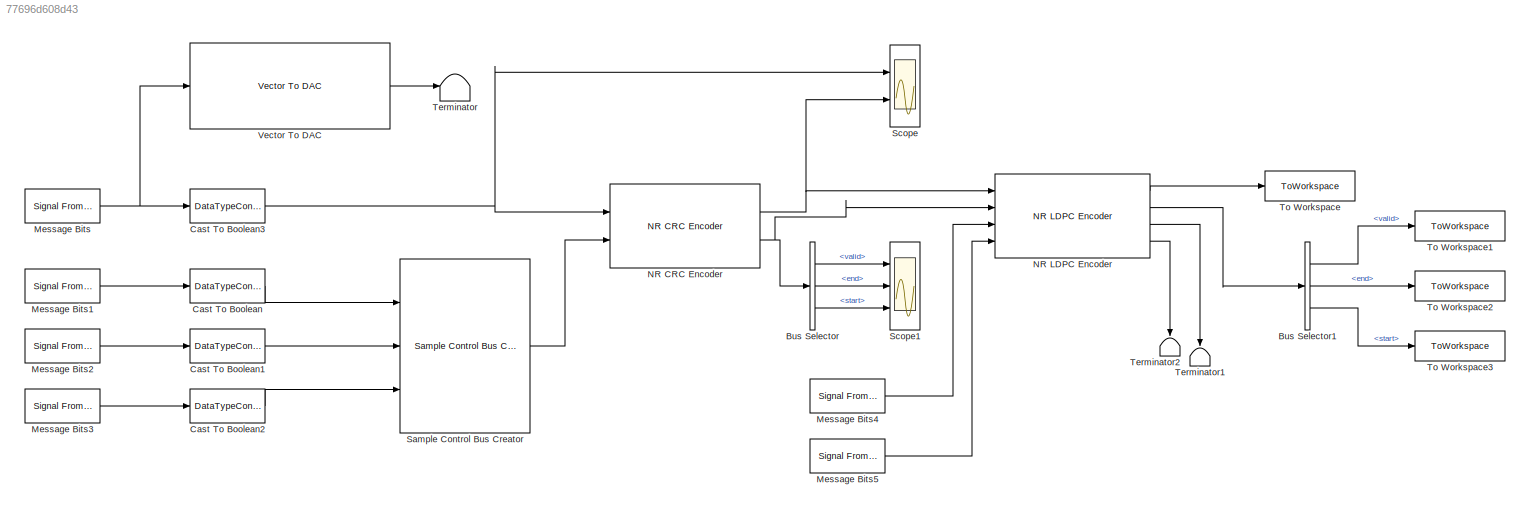
MODEL slx_77696d608d43
KIND model
CONFIG AbsTol = auto
CONFIG EnableMultiTasking = off
CONFIG FixedStep = auto
CONFIG MaxStep = auto
CONFIG MinStep = auto
CONFIG RelTol = 1e-3
CONFIG SampleTimeConstraint = Unconstrained
CONFIG SolverName = VariableStepAuto
CONFIG StartTime = 0.0
CONFIG StopTime = 60
BLOCK [BusSelector] Bus Selector
  OutputSignals = valid,end,start
  Ports = [1, 3]
BLOCK [BusSelector] Bus Selector1
  OutputSignals = valid,end,start
  Ports = [1, 3]
BLOCK [DataTypeConversion] Cast To Boolean
  OutDataTypeStr = boolean
  RndMeth = Floor
  SaturateOnIntegerOverflow = off
BLOCK [DataTypeConversion] Cast To Boolean1
  OutDataTypeStr = boolean
  RndMeth = Floor
  SaturateOnIntegerOverflow = off
BLOCK [DataTypeConversion] Cast To Boolean2
  OutDataTypeStr = boolean
  RndMeth = Floor
  SaturateOnIntegerOverflow = off
BLOCK [DataTypeConversion] Cast To Boolean3
  OutDataTypeStr = boolean
  RndMeth = Floor
  SaturateOnIntegerOverflow = off
BLOCK [Reference] Message Bits  REF=dspsrcs4/Signal From
Workspace
  Ports = [0, 1]
  SourceBlock = dspsrcs4/Signal From\nWorkspace
  SourceProductBaseCode = DS
  SourceType = Signal From Workspace
BLOCK [Reference] Message Bits1  REF=dspsrcs4/Signal From
Workspace
  Ports = [0, 1]
  SourceBlock = dspsrcs4/Signal From\nWorkspace
  SourceProductBaseCode = DS
  SourceType = Signal From Workspace
BLOCK [Reference] Message Bits2  REF=dspsrcs4/Signal From
Workspace
  Ports = [0, 1]
  SourceBlock = dspsrcs4/Signal From\nWorkspace
  SourceProductBaseCode = DS
  SourceType = Signal From Workspace
BLOCK [Reference] Message Bits3  REF=dspsrcs4/Signal From
Workspace
  Ports = [0, 1]
  SourceBlock = dspsrcs4/Signal From\nWorkspace
  SourceProductBaseCode = DS
  SourceType = Signal From Workspace
BLOCK [Reference] Message Bits4  REF=dspsrcs4/Signal From
Workspace
  Ports = [0, 1]
  SourceBlock = dspsrcs4/Signal From\nWorkspace
  SourceProductBaseCode = DS
  SourceType = Signal From Workspace
BLOCK [Reference] Message Bits5  REF=dspsrcs4/Signal From
Workspace
  Ports = [0, 1]
  SourceBlock = dspsrcs4/Signal From\nWorkspace
  SourceProductBaseCode = DS
  SourceType = Signal From Workspace
BLOCK [Reference] NR CRC Encoder  REF=whdledac/NR CRC Encoder
  Ports = [2, 2]
  SourceBlock = whdledac/NR CRC Encoder
  SourceProductBaseCode = LH
  SourceType = NR CRC Encoder
BLOCK [Reference] NR LDPC Encoder  REF=whdledac/NR LDPC Encoder
  Ports = [4, 4]
  SourceBlock = whdledac/NR LDPC Encoder
  SourceProductBaseCode = LH
  SourceType = NR LDPC Encoder
BLOCK [Reference] Sample Control Bus Creator  REF=whdlutilities/Sample Control
Bus Creator
  Ports = [3, 1]
  SourceBlock = whdlutilities/Sample Control\nBus Creator
  SourceProductBaseCode = LH
  SourceType = Sample Control Bus Creator
BLOCK [Scope] Scope
  Floating = off
  NumInputPorts = 2
  Ports = [2]
  ScopeSpecificationString = Simulink.scopes.TimeScopeBlockCfg('CurrentConfiguration', extmgr.ConfigurationSet(extmgr.Configuration('Core','General UI',true),extmgr.Configuration('Core','Source UI',true),extmgr.Configuration('Sources','WiredSimulink',true),extmgr.Configuration('Visuals','Time Domain',true,'SerializedDisplays',{struct('MinYLimReal','-0.125','MaxYLimReal','1.125','YLabelReal','','MinYLimMag','0.00000','MaxYLimM...<+2015ch>
BLOCK [Scope] Scope1
  Floating = off
  NumInputPorts = 3
  Ports = [3]
  ScopeSpecificationString = Simulink.scopes.TimeScopeBlockCfg('CurrentConfiguration', extmgr.ConfigurationSet(extmgr.Configuration('Core','General UI',true),extmgr.Configuration('Core','Source UI',true),extmgr.Configuration('Sources','WiredSimulink',true,'DataLoggingVariableName','ScopeData1'),extmgr.Configuration('Visuals','Time Domain',true,'SerializedDisplays',{struct('MinYLimReal','-0.125','MaxYLimReal','1.125','YLabelRe...<+2730ch>
BLOCK [Terminator] Terminator
BLOCK [Terminator] Terminator1
  NameLocation = left
BLOCK [Terminator] Terminator2
  NameLocation = left
BLOCK [ToWorkspace] To Workspace
  FixptAsFi = on
  MaxDataPoints = inf
  Ports = [1]
  SampleTime = 1
  Save2DSignal = 2-D array (concatenate along first dimension)
  VariableName = output
BLOCK [ToWorkspace] To Workspace1
  FixptAsFi = on
  MaxDataPoints = inf
  Ports = [1]
  SampleTime = 1
  Save2DSignal = 2-D array (concatenate along first dimension)
  VariableName = ValidOut
BLOCK [ToWorkspace] To Workspace2
  FixptAsFi = on
  MaxDataPoints = inf
  Ports = [1]
  SampleTime = 1
  Save2DSignal = 2-D array (concatenate along first dimension)
  VariableName = endOut
BLOCK [ToWorkspace] To Workspace3
  FixptAsFi = on
  MaxDataPoints = inf
  Ports = [1]
  SampleTime = 1
  Save2DSignal = 2-D array (concatenate along first dimension)
  VariableName = startOut
BLOCK [Reference] Vector To DAC  REF=xilinxrfsoclib/Vector To DAC
  Ports = [1, 1]
  SourceBlock = xilinxrfsoclib/Vector To DAC
  SourceProductBaseCode = XILINX_BLOCKSET
  SourceType = Vector To DAC
LINE Bus Selector1:1 -> To Workspace1:1
LINE Bus Selector1:2 -> To Workspace2:1
LINE Bus Selector1:3 -> To Workspace3:1
LINE Bus Selector:1 -> Scope1:1
LINE Bus Selector:2 -> Scope1:2
LINE Bus Selector:3 -> Scope1:3
LINE Cast To Boolean1:1 -> Sample Control Bus Creator:2
LINE Cast To Boolean2:1 -> Sample Control Bus Creator:3
NET Cast To Boolean3:1 -> NR CRC Encoder:1, Scope:1
LINE Cast To Boolean:1 -> Sample Control Bus Creator:1
LINE Message Bits1:1 -> Cast To Boolean:1
LINE Message Bits2:1 -> Cast To Boolean1:1
LINE Message Bits3:1 -> Cast To Boolean2:1
LINE Message Bits4:1 -> NR LDPC Encoder:3
LINE Message Bits5:1 -> NR LDPC Encoder:4
NET Message Bits:1 -> Cast To Boolean3:1, Vector To DAC:1
NET NR CRC Encoder:1 -> NR LDPC Encoder:1, Scope:2
NET NR CRC Encoder:2 -> Bus Selector:1, NR LDPC Encoder:2
LINE NR LDPC Encoder:1 -> To Workspace:1
LINE NR LDPC Encoder:2 -> Bus Selector1:1
LINE NR LDPC Encoder:3 -> Terminator1:1
LINE NR LDPC Encoder:4 -> Terminator2:1
LINE Sample Control Bus Creator:1 -> NR CRC Encoder:2
LINE Vector To DAC:1 -> Terminator:1
note: NET lines group one-source signal fan-out (src -> all destinations, sorted); 1:1 wires keep LINE
